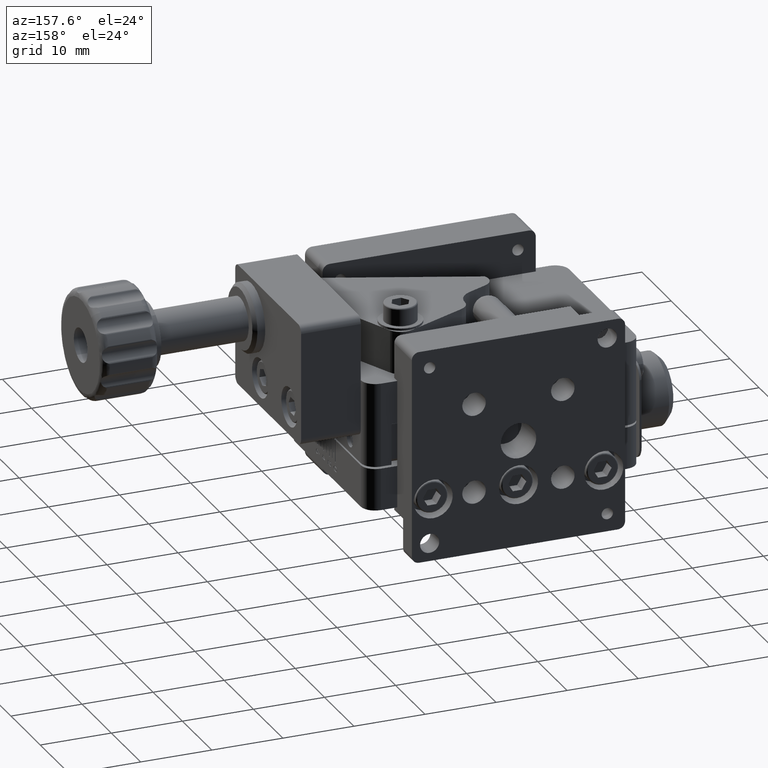
[diagram: clean part render]
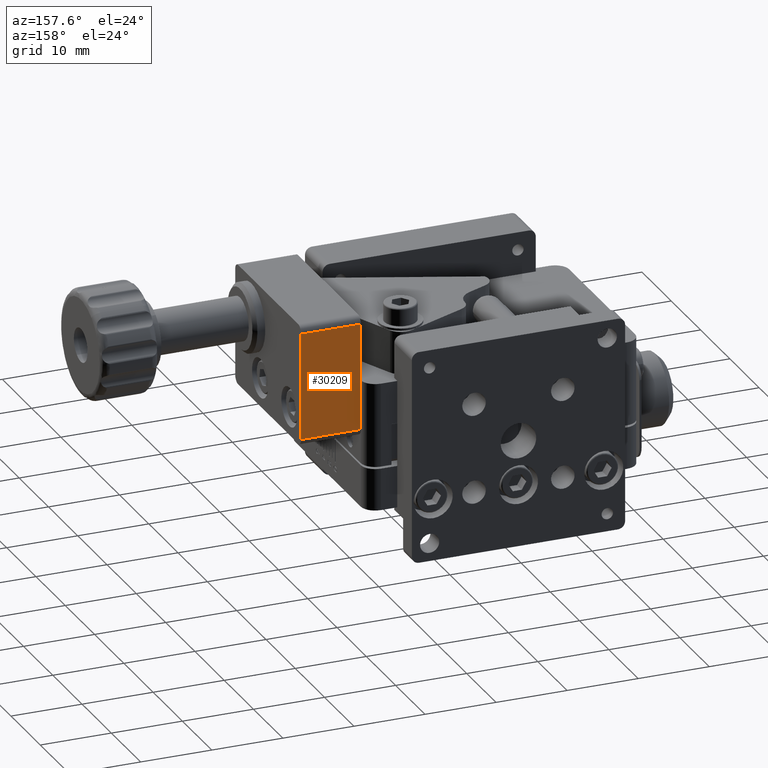
[diagram: same view with one face highlighted and labeled with its STEP entity id]
A machine part, auxiliary view. The second image highlights one B-rep face of the part: STEP entity #30209.
In plain terms, the highlighted planar face has unit normal (-0, -1, -0).
Its self-contained STEP definition (entity closure, byte-faithful):
#114 = LINE ( 'NONE', #21206, #25599 ) ;
#2207 = CARTESIAN_POINT ( 'NONE',  ( 27.16904537260123600, -9.138511800735846800, 47.00000000000007100 ) ) ;
#2636 = LINE ( 'NONE', #19905, #18522 ) ;
#2666 = CARTESIAN_POINT ( 'NONE',  ( 18.76904537260123400, -9.138511800735864600, 47.00000000000007100 ) ) ;
#4561 = DIRECTION ( 'NONE',  ( 1.269763971340291200E-031, -1.032160468206200100E-016, 1.000000000000000000 ) ) ;
#5809 = CARTESIAN_POINT ( 'NONE',  ( 18.76904537260123400, -9.138511800735882300, 31.99999999999999300 ) ) ;
#5987 = ORIENTED_EDGE ( 'NONE', *, *, #6108, .T. ) ;
#6108 = EDGE_CURVE ( 'NONE', #30591, #13792, #22892, .T. ) ;
#6127 = PLANE ( 'NONE',  #25029 ) ;
#6559 = EDGE_CURVE ( 'NONE', #13050, #11380, #2636, .T. ) ;
#6734 = ORIENTED_EDGE ( 'NONE', *, *, #21450, .F. ) ;
#8247 = DIRECTION ( 'NONE',  ( -1.804112415015876900E-016, -1.000000000000000000, -1.032160468206200100E-016 ) ) ;
#8273 = ORIENTED_EDGE ( 'NONE', *, *, #6559, .T. ) ;
#9350 = VECTOR ( 'NONE', #32806, 1000.000000000000000 ) ;
#11380 = VERTEX_POINT ( 'NONE', #5809 ) ;
#12071 = CARTESIAN_POINT ( 'NONE',  ( 27.16904537260123600, -9.138511800735866300, 48.00000000000014200 ) ) ;
#12749 = EDGE_LOOP ( 'NONE', ( #6734, #8273, #16689, #5987 ) ) ;
#13050 = VERTEX_POINT ( 'NONE', #32714 ) ;
#13421 = VECTOR ( 'NONE', #4561, 1000.000000000000000 ) ;
#13792 = VERTEX_POINT ( 'NONE', #14529 ) ;
#14529 = CARTESIAN_POINT ( 'NONE',  ( 27.16904537260123600, -9.138511800735846800, 47.00000000000007100 ) ) ;
#15763 = DIRECTION ( 'NONE',  ( 1.269763971340291200E-031, -1.032160468206200100E-016, 1.000000000000000000 ) ) ;
#16689 = ORIENTED_EDGE ( 'NONE', *, *, #24713, .T. ) ;
#18487 = FACE_OUTER_BOUND ( 'NONE', #12749, .T. ) ;
#18522 = VECTOR ( 'NONE', #32306, 1000.000000000000000 ) ;
#18619 = LINE ( 'NONE', #12071, #13421 ) ;
#19905 = CARTESIAN_POINT ( 'NONE',  ( 27.16904537260123600, -9.138511800735864600, 31.99999999999999300 ) ) ;
#21015 = DIRECTION ( 'NONE',  ( -1.000000000000000000, 1.804112415015876900E-016, 6.984547439002462700E-032 ) ) ;
#21206 = CARTESIAN_POINT ( 'NONE',  ( 18.76904537260123400, -9.138511800735884100, 48.00000000000014200 ) ) ;
#21450 = EDGE_CURVE ( 'NONE', #13050, #13792, #18619, .T. ) ;
#22892 = LINE ( 'NONE', #2207, #9350 ) ;
#24713 = EDGE_CURVE ( 'NONE', #11380, #30591, #114, .T. ) ;
#25029 = AXIS2_PLACEMENT_3D ( 'NONE', #26037, #8247, #21015 ) ;
#25599 = VECTOR ( 'NONE', #15763, 1000.000000000000000 ) ;
#26037 = CARTESIAN_POINT ( 'NONE',  ( 27.16904537260123600, -9.138511800735866300, 48.00000000000014200 ) ) ;
#30209 = ADVANCED_FACE ( 'NONE', ( #18487 ), #6127, .F. ) ;
#30591 = VERTEX_POINT ( 'NONE', #2666 ) ;
#32306 = DIRECTION ( 'NONE',  ( -1.000000000000000000, 1.804112415015876900E-016, 6.984547439002462700E-032 ) ) ;
#32714 = CARTESIAN_POINT ( 'NONE',  ( 27.16904537260123600, -9.138511800735864600, 31.99999999999999300 ) ) ;
#32806 = DIRECTION ( 'NONE',  ( 1.000000000000000000, -1.804112415015876900E-016, -6.984547439002462700E-032 ) ) ;